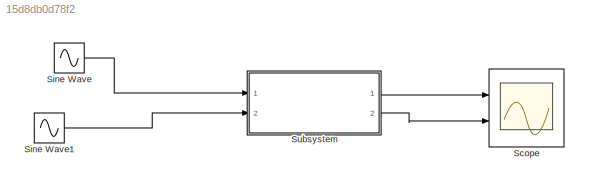
MODEL slx_15d8db0d78f2
KIND model
CONFIG AbsTol = auto
CONFIG EnableMultiTasking = off
CONFIG FixedStep = auto
CONFIG MaxStep = 0.002
CONFIG MinStep = auto
CONFIG RelTol = 1e-3
CONFIG SampleTimeConstraint = Unconstrained
CONFIG SolverName = FixedStepAuto
CONFIG StartTime = 0.0
CONFIG StopTime = 10.0
BLOCK [Scope] Scope
  Floating = off
  NumInputPorts = 2
  Ports = [2]
  ScopeSpecificationString = Simulink.scopes.TimeScopeBlockCfg('CurrentConfiguration', extmgr.ConfigurationSet(extmgr.Configuration('Core','General UI',true),extmgr.Configuration('Core','Source UI',true),extmgr.Configuration('Sources','WiredSimulink',true),extmgr.Configuration('Visuals','Time Domain',true,'SerializedDisplays',{struct('MinYLimReal','-1.31127','MaxYLimReal','1.30597','YLabelReal','','MinYLimMag','0.00000','MaxY...<+2111ch>
BLOCK [Sin] Sine Wave
  Ports = [0, 1]
  SampleTime = 0
BLOCK [Sin] Sine Wave1
  Amplitude = 0.05
  Frequency = 250
  Ports = [0, 1]
  SampleTime = 0
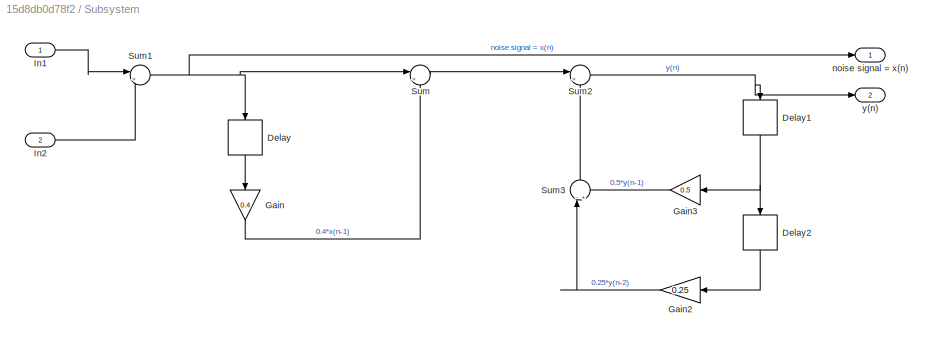
BLOCK [SubSystem] Subsystem
  Ports = [2, 2]
  RequestExecContextInheritance = off
BLOCK [Delay] Subsystem/Delay
  DelayLength = 1
  InitialCondition = 0
  InputPortMap = u0
  NameLocation = left
  Ports = [1, 1]
BLOCK [Delay] Subsystem/Delay1
  DelayLength = 1
  InitialCondition = 0
  InputPortMap = u0
  NameLocation = left
  Ports = [1, 1]
BLOCK [Delay] Subsystem/Delay2
  DelayLength = 1
  InitialCondition = 0
  InputPortMap = u0
  NameLocation = left
  Ports = [1, 1]
BLOCK [Gain] Subsystem/Gain
  Gain = 0.4
  NameLocation = left
BLOCK [Gain] Subsystem/Gain2
  Gain = 0.25
  NameLocation = top
BLOCK [Gain] Subsystem/Gain3
  Gain = 0.5
  NameLocation = top
BLOCK [Inport] Subsystem/In1
BLOCK [Inport] Subsystem/In2
  Port = 2
BLOCK [Sum] Subsystem/Sum
  Inputs = |++
  Ports = [2, 1]
BLOCK [Sum] Subsystem/Sum1
  Inputs = |++
  Ports = [2, 1]
BLOCK [Sum] Subsystem/Sum2
  Inputs = |++
  Ports = [2, 1]
BLOCK [Sum] Subsystem/Sum3
  Inputs = -+
  NameLocation = right
  Ports = [2, 1]
BLOCK [Outport] Subsystem/noise signal = x(n)
BLOCK [Outport] Subsystem/y(n)
  Port = 2
LINE Sine Wave1:1 -> Subsystem:2
LINE Sine Wave:1 -> Subsystem:1
NET Subsystem/Delay1:1 -> Subsystem/Delay2:1, Subsystem/Gain3:1
LINE Subsystem/Delay2:1 -> Subsystem/Gain2:1
LINE Subsystem/Delay:1 -> Subsystem/Gain:1
LINE Subsystem/Gain2:1 -> Subsystem/Sum3:1
LINE Subsystem/Gain3:1 -> Subsystem/Sum3:2
LINE Subsystem/Gain:1 -> Subsystem/Sum:2
LINE Subsystem/In1:1 -> Subsystem/Sum1:1
LINE Subsystem/In2:1 -> Subsystem/Sum1:2
NET Subsystem/Sum1:1 -> Subsystem/Delay:1, Subsystem/Sum:1, Subsystem/noise signal = x(n):1
NET Subsystem/Sum2:1 -> Subsystem/Delay1:1, Subsystem/y(n):1
LINE Subsystem/Sum3:1 -> Subsystem/Sum2:2
LINE Subsystem/Sum:1 -> Subsystem/Sum2:1
LINE Subsystem:1 -> Scope:1
LINE Subsystem:2 -> Scope:2
note: NET lines group one-source signal fan-out (src -> all destinations, sorted); 1:1 wires keep LINE
